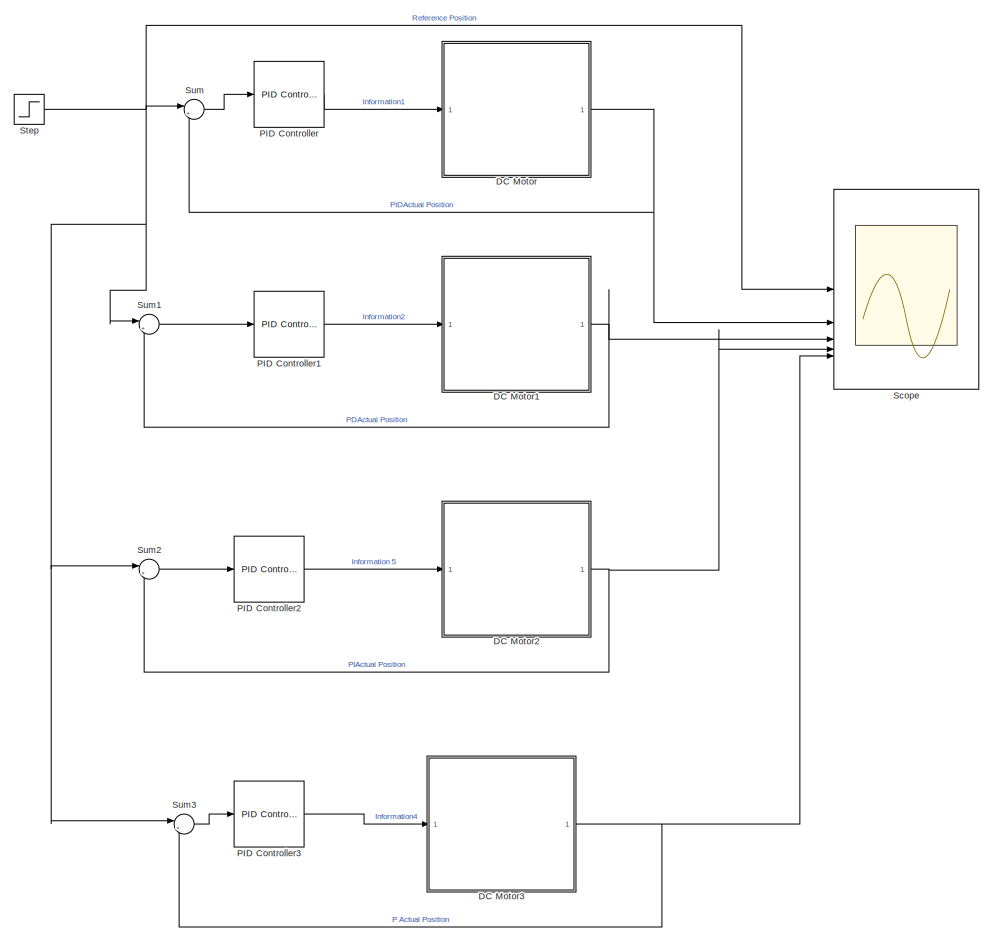
[diagram: root canvas - part 1/2, center side, full height]
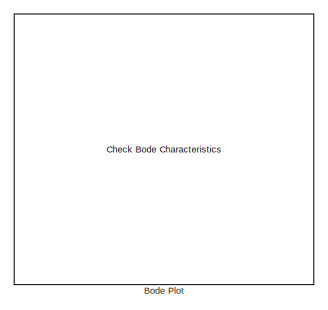
[diagram: root canvas - part 2/2, top left region]
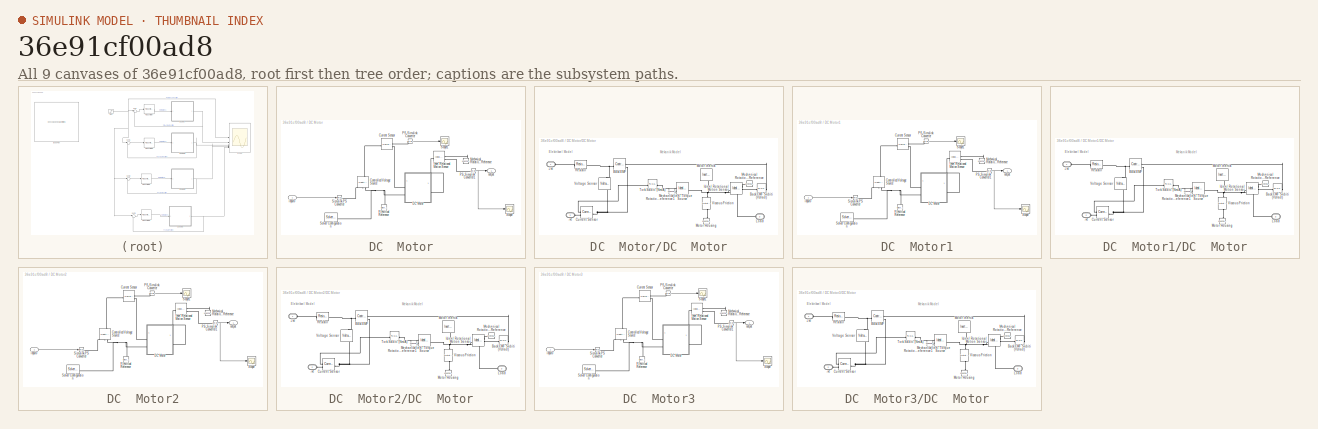
[diagram: thumbnail index - all 9 canvases of the model, root first then tree order]
MODEL slx_36e91cf00ad8
KIND model
CONFIG AbsTol = auto
CONFIG EnableMultiTasking = on
CONFIG FixedStep = 0.001
CONFIG MaxStep = auto
CONFIG MinStep = auto
CONFIG RelTol = 1e-4
CONFIG SampleTimeConstraint = Unconstrained
CONFIG SolverName = ode23t
CONFIG StartTime = 0.0
CONFIG StopTime = 7
WORKSPACE source: mxarray member
WORKSPACE B = 0.008
WORKSPACE J = 5.7e-07
WORKSPACE Jd = 0.001
WORKSPACE Km = 0.0134
WORKSPACE La = 6.5e-05
WORKSPACE Ra = 1.9
WORKSPACE spe_servomotor_sdosession: sldodialogs.data.SessionData (value not decoded)
WORKSPACE x0 = 2.6485
BLOCK [Reference] Bode Plot  REF=slctrlblks/Model Verification/Check Bode 
Characteristics
  InstantiateOnLoad = on
  LibrarySourceBlock = slctrlblks/Linear Analysis Plots/Bode Plot
  SourceBlock = slctrlblks/Model Verification/Check Bode \nCharacteristics
  SourceType = Checks_Bode
BLOCK [SubSystem] DC  Motor
BLOCK [Reference] DC  Motor/Controlled Voltage Source  REF=fl_lib/Electrical/Electrical Sources/Controlled Voltage
Source
  NameLocation = right
  SourceBlock = fl_lib/Electrical/Electrical Sources/Controlled Voltage\nSource
  SourceType = Controlled Voltage\nSource
BLOCK [Reference] DC  Motor/Current Sensor  REF=fl_lib/Electrical/Electrical Sensors/Current Sensor
  SourceBlock = fl_lib/Electrical/Electrical Sensors/Current Sensor
  SourceType = Current Sensor
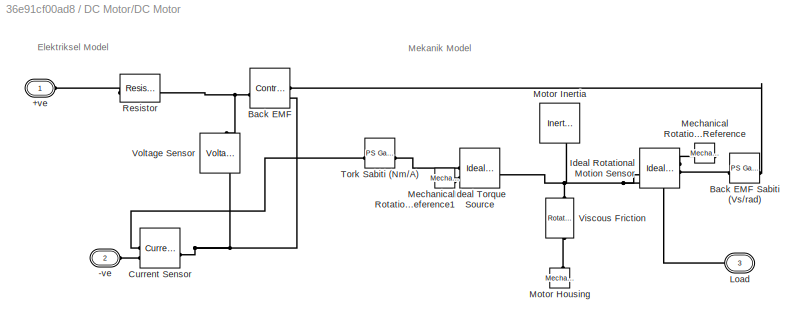
BLOCK [SubSystem] DC  Motor/DC  Motor
BLOCK [PMIOPort] DC  Motor/DC  Motor/+ve
  Side = Left
  Tag = PMCPort
BLOCK [PMIOPort] DC  Motor/DC  Motor/-ve
  Port = 2
  Side = Left
  Tag = PMCPort
BLOCK [Reference] DC  Motor/DC  Motor/Back EMF  REF=fl_lib/Electrical/Electrical Sources/Controlled Voltage
Source
  NameLocation = top
  SourceBlock = fl_lib/Electrical/Electrical Sources/Controlled Voltage\nSource
  SourceType = Controlled Voltage\nSource
BLOCK [Reference] DC  Motor/DC  Motor/Back EMF Sabiti (Vs//rad)  REF=fl_ps_legacy_lib/Legacy Physical
Signals/Functions/PS Gain
  SourceBlock = fl_ps_legacy_lib/Legacy Physical\nSignals/Functions/PS Gain
  SourceType = PS Gain
BLOCK [Reference] DC  Motor/DC  Motor/Current Sensor  REF=fl_lib/Electrical/Electrical Sensors/Current Sensor
  SourceBlock = fl_lib/Electrical/Electrical Sensors/Current Sensor
  SourceType = Current Sensor
BLOCK [Reference] DC  Motor/DC  Motor/Ideal Rotational Motion Sensor  REF=fl_lib/Mechanical/Mechanical Sensors/Ideal Rotational
Motion Sensor
  SourceBlock = fl_lib/Mechanical/Mechanical Sensors/Ideal Rotational\nMotion Sensor
  SourceType = Ideal Rotational\nMotion Sensor
BLOCK [Reference] DC  Motor/DC  Motor/Ideal Torque Source  REF=fl_lib/Mechanical/Mechanical Sources/Ideal Torque Source
  SourceBlock = fl_lib/Mechanical/Mechanical Sources/Ideal Torque Source
  SourceType = Ideal Torque Source
BLOCK [PMIOPort] DC  Motor/DC  Motor/Load
  Port = 3
  Side = Right
BLOCK [Reference] DC  Motor/DC  Motor/Mechanical Rotational Reference  REF=fl_lib/Mechanical/Rotational Elements/Mechanical
Rotational Reference
  NameLocation = top
  SourceBlock = fl_lib/Mechanical/Rotational Elements/Mechanical\nRotational Reference
  SourceType = Mechanical\nRotational Reference
BLOCK [Reference] DC  Motor/DC  Motor/Mechanical Rotational Reference1  REF=fl_lib/Mechanical/Rotational Elements/Mechanical
Rotational Reference
  SourceBlock = fl_lib/Mechanical/Rotational Elements/Mechanical\nRotational Reference
  SourceType = Mechanical\nRotational Reference
BLOCK [Reference] DC  Motor/DC  Motor/Motor Housing  REF=fl_lib/Mechanical/Rotational Elements/Mechanical
Rotational Reference
  NameLocation = right
  SourceBlock = fl_lib/Mechanical/Rotational Elements/Mechanical\nRotational Reference
  SourceType = Mechanical\nRotational Reference
BLOCK [Reference] DC  Motor/DC  Motor/Motor Inertia  REF=fl_lib/Mechanical/Rotational Elements/Inertia
  NameLocation = left
  SourceBlock = fl_lib/Mechanical/Rotational Elements/Inertia
  SourceType = Inertia
BLOCK [Reference] DC  Motor/DC  Motor/Resistor  REF=fl_lib/Electrical/Electrical Elements/Resistor
  SourceBlock = fl_lib/Electrical/Electrical Elements/Resistor
  SourceType = Resistor
BLOCK [Reference] DC  Motor/DC  Motor/Tork Sabiti (Nm//A)  REF=fl_ps_legacy_lib/Legacy Physical
Signals/Functions/PS Gain
  SourceBlock = fl_ps_legacy_lib/Legacy Physical\nSignals/Functions/PS Gain
  SourceType = PS Gain
BLOCK [Reference] DC  Motor/DC  Motor/Viscous Friction  REF=fl_lib/Mechanical/Rotational Elements/Rotational Damper
  NameLocation = right
  SourceBlock = fl_lib/Mechanical/Rotational Elements/Rotational Damper
  SourceType = Rotational Damper
BLOCK [Reference] DC  Motor/DC  Motor/Voltage Sensor  REF=fl_lib/Electrical/Electrical Sensors/Voltage Sensor
  NameLocation = right
  SourceBlock = fl_lib/Electrical/Electrical Sensors/Voltage Sensor
  SourceType = Voltage Sensor
BLOCK [Reference] DC  Motor/Electrical Reference  REF=fl_lib/Electrical/Electrical Elements/Electrical Reference
  NameLocation = right
  SourceBlock = fl_lib/Electrical/Electrical Elements/Electrical Reference
  SourceType = Electrical Reference
BLOCK [Reference] DC  Motor/Ideal Rotational Motion Sensor  REF=fl_lib/Mechanical/Mechanical Sensors/Ideal Rotational
Motion Sensor
  SourceBlock = fl_lib/Mechanical/Mechanical Sensors/Ideal Rotational\nMotion Sensor
  SourceType = Ideal Rotational\nMotion Sensor
BLOCK [Reference] DC  Motor/Mechanical Rotational Reference  REF=fl_lib/Mechanical/Rotational Elements/Mechanical
Rotational Reference
  NameLocation = top
  SourceBlock = fl_lib/Mechanical/Rotational Elements/Mechanical\nRotational Reference
  SourceType = Mechanical\nRotational Reference
BLOCK [Reference] DC  Motor/PS-Simulink Converter  REF=nesl_utility/PS-Simulink
Converter
  SourceBlock = nesl_utility/PS-Simulink\nConverter
  SourceType = PS-Simulink\nConverter
BLOCK [Reference] DC  Motor/PS-Simulink Converter1  REF=nesl_utility/PS-Simulink
Converter
  SourceBlock = nesl_utility/PS-Simulink\nConverter
  SourceType = PS-Simulink\nConverter
BLOCK [Scope] DC  Motor/Scope
  Floating = off
  NumInputPorts = 1
  ScopeSpecificationString = Simulink.scopes.TimeScopeBlockCfg('CurrentConfiguration', extmgr.ConfigurationSet(extmgr.Configuration('Core','General UI',true),extmgr.Configuration('Core','Source UI',true),extmgr.Configuration('Sources','WiredSimulink',true,'DataLoggingVariableName','ScopeData1'),extmgr.Configuration('Visuals','Time Domain',true,'SerializedDisplays',{struct('MinYLimReal','-0.000000000000000000000000000005','Max...<+1630ch>
BLOCK [Scope] DC  Motor/Scope1
  Floating = off
  NumInputPorts = 1
  ScopeSpecificationString = Simulink.scopes.TimeScopeBlockCfg('CurrentConfiguration', extmgr.ConfigurationSet(extmgr.Configuration('Core','General UI',true),extmgr.Configuration('Core','Source UI',true),extmgr.Configuration('Sources','WiredSimulink',true,'DataLoggingVariableName','ScopeData1'),extmgr.Configuration('Visuals','Time Domain',true,'SerializedDisplays',{struct('MinYLimReal','-0.00754','MaxYLimReal','0.05533','YLab...<+1409ch>
BLOCK [Reference] DC  Motor/Simulink-PS Converter  REF=nesl_utility/Simulink-PS
Converter
  SourceBlock = nesl_utility/Simulink-PS\nConverter
  SourceType = Simulink-PS\nConverter
BLOCK [Reference] DC  Motor/Solver Configuration  REF=nesl_utility/Solver
Configuration
  SourceBlock = nesl_utility/Solver\nConfiguration
  SourceType = Solver\nConfiguration
BLOCK [Inport] DC  Motor/input0
BLOCK [Outport] DC  Motor/output
BLOCK [SubSystem] DC  Motor1
BLOCK [Reference] DC  Motor1/Controlled Voltage Source  REF=fl_lib/Electrical/Electrical Sources/Controlled Voltage
Source
  NameLocation = right
  SourceBlock = fl_lib/Electrical/Electrical Sources/Controlled Voltage\nSource
  SourceType = Controlled Voltage\nSource
BLOCK [Reference] DC  Motor1/Current Sensor  REF=fl_lib/Electrical/Electrical Sensors/Current Sensor
  SourceBlock = fl_lib/Electrical/Electrical Sensors/Current Sensor
  SourceType = Current Sensor
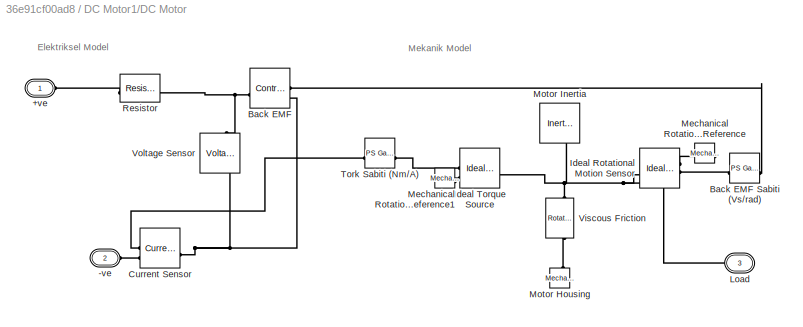
BLOCK [SubSystem] DC  Motor1/DC  Motor
BLOCK [PMIOPort] DC  Motor1/DC  Motor/+ve
  Side = Left
  Tag = PMCPort
BLOCK [PMIOPort] DC  Motor1/DC  Motor/-ve
  Port = 2
  Side = Left
  Tag = PMCPort
BLOCK [Reference] DC  Motor1/DC  Motor/Back EMF  REF=fl_lib/Electrical/Electrical Sources/Controlled Voltage
Source
  NameLocation = top
  SourceBlock = fl_lib/Electrical/Electrical Sources/Controlled Voltage\nSource
  SourceType = Controlled Voltage\nSource
BLOCK [Reference] DC  Motor1/DC  Motor/Back EMF Sabiti (Vs//rad)  REF=fl_ps_legacy_lib/Legacy Physical
Signals/Functions/PS Gain
  SourceBlock = fl_ps_legacy_lib/Legacy Physical\nSignals/Functions/PS Gain
  SourceType = PS Gain
BLOCK [Reference] DC  Motor1/DC  Motor/Current Sensor  REF=fl_lib/Electrical/Electrical Sensors/Current Sensor
  SourceBlock = fl_lib/Electrical/Electrical Sensors/Current Sensor
  SourceType = Current Sensor
BLOCK [Reference] DC  Motor1/DC  Motor/Ideal Rotational Motion Sensor  REF=fl_lib/Mechanical/Mechanical Sensors/Ideal Rotational
Motion Sensor
  SourceBlock = fl_lib/Mechanical/Mechanical Sensors/Ideal Rotational\nMotion Sensor
  SourceType = Ideal Rotational\nMotion Sensor
BLOCK [Reference] DC  Motor1/DC  Motor/Ideal Torque Source  REF=fl_lib/Mechanical/Mechanical Sources/Ideal Torque Source
  SourceBlock = fl_lib/Mechanical/Mechanical Sources/Ideal Torque Source
  SourceType = Ideal Torque Source
BLOCK [PMIOPort] DC  Motor1/DC  Motor/Load
  Port = 3
  Side = Right
BLOCK [Reference] DC  Motor1/DC  Motor/Mechanical Rotational Reference  REF=fl_lib/Mechanical/Rotational Elements/Mechanical
Rotational Reference
  NameLocation = top
  SourceBlock = fl_lib/Mechanical/Rotational Elements/Mechanical\nRotational Reference
  SourceType = Mechanical\nRotational Reference
BLOCK [Reference] DC  Motor1/DC  Motor/Mechanical Rotational Reference1  REF=fl_lib/Mechanical/Rotational Elements/Mechanical
Rotational Reference
  SourceBlock = fl_lib/Mechanical/Rotational Elements/Mechanical\nRotational Reference
  SourceType = Mechanical\nRotational Reference
BLOCK [Reference] DC  Motor1/DC  Motor/Motor Housing  REF=fl_lib/Mechanical/Rotational Elements/Mechanical
Rotational Reference
  NameLocation = right
  SourceBlock = fl_lib/Mechanical/Rotational Elements/Mechanical\nRotational Reference
  SourceType = Mechanical\nRotational Reference
BLOCK [Reference] DC  Motor1/DC  Motor/Motor Inertia  REF=fl_lib/Mechanical/Rotational Elements/Inertia
  NameLocation = left
  SourceBlock = fl_lib/Mechanical/Rotational Elements/Inertia
  SourceType = Inertia
BLOCK [Reference] DC  Motor1/DC  Motor/Resistor  REF=fl_lib/Electrical/Electrical Elements/Resistor
  SourceBlock = fl_lib/Electrical/Electrical Elements/Resistor
  SourceType = Resistor
BLOCK [Reference] DC  Motor1/DC  Motor/Tork Sabiti (Nm//A)  REF=fl_ps_legacy_lib/Legacy Physical
Signals/Functions/PS Gain
  SourceBlock = fl_ps_legacy_lib/Legacy Physical\nSignals/Functions/PS Gain
  SourceType = PS Gain
BLOCK [Reference] DC  Motor1/DC  Motor/Viscous Friction  REF=fl_lib/Mechanical/Rotational Elements/Rotational Damper
  NameLocation = right
  SourceBlock = fl_lib/Mechanical/Rotational Elements/Rotational Damper
  SourceType = Rotational Damper
BLOCK [Reference] DC  Motor1/DC  Motor/Voltage Sensor  REF=fl_lib/Electrical/Electrical Sensors/Voltage Sensor
  NameLocation = right
  SourceBlock = fl_lib/Electrical/Electrical Sensors/Voltage Sensor
  SourceType = Voltage Sensor
BLOCK [Reference] DC  Motor1/Electrical Reference  REF=fl_lib/Electrical/Electrical Elements/Electrical Reference
  NameLocation = right
  SourceBlock = fl_lib/Electrical/Electrical Elements/Electrical Reference
  SourceType = Electrical Reference
BLOCK [Reference] DC  Motor1/Ideal Rotational Motion Sensor  REF=fl_lib/Mechanical/Mechanical Sensors/Ideal Rotational
Motion Sensor
  SourceBlock = fl_lib/Mechanical/Mechanical Sensors/Ideal Rotational\nMotion Sensor
  SourceType = Ideal Rotational\nMotion Sensor
BLOCK [Reference] DC  Motor1/Mechanical Rotational Reference  REF=fl_lib/Mechanical/Rotational Elements/Mechanical
Rotational Reference
  NameLocation = top
  SourceBlock = fl_lib/Mechanical/Rotational Elements/Mechanical\nRotational Reference
  SourceType = Mechanical\nRotational Reference
BLOCK [Reference] DC  Motor1/PS-Simulink Converter  REF=nesl_utility/PS-Simulink
Converter
  SourceBlock = nesl_utility/PS-Simulink\nConverter
  SourceType = PS-Simulink\nConverter
BLOCK [Reference] DC  Motor1/PS-Simulink Converter1  REF=nesl_utility/PS-Simulink
Converter
  SourceBlock = nesl_utility/PS-Simulink\nConverter
  SourceType = PS-Simulink\nConverter
BLOCK [Scope] DC  Motor1/Scope
  Floating = off
  NumInputPorts = 1
  ScopeSpecificationString = Simulink.scopes.TimeScopeBlockCfg('CurrentConfiguration', extmgr.ConfigurationSet(extmgr.Configuration('Core','General UI',true),extmgr.Configuration('Core','Source UI',true),extmgr.Configuration('Sources','WiredSimulink',true,'DataLoggingVariableName','ScopeData1'),extmgr.Configuration('Visuals','Time Domain',true,'SerializedDisplays',{struct('MinYLimReal','-0.000000000000000000000000000005','Max...<+1600ch>  <repeated x3 — deduplicated; at blocks: Scope>
BLOCK [Scope] DC  Motor1/Scope1
  Floating = off
  NumInputPorts = 1
  ScopeSpecificationString = Simulink.scopes.TimeScopeBlockCfg('CurrentConfiguration', extmgr.ConfigurationSet(extmgr.Configuration('Core','General UI',true),extmgr.Configuration('Core','Source UI',true),extmgr.Configuration('Sources','WiredSimulink',true,'DataLoggingVariableName','ScopeData1'),extmgr.Configuration('Visuals','Time Domain',true,'SerializedDisplays',{struct('MinYLimReal','-0.06579','MaxYLimReal','0.59208','YLab...<+1380ch>  <repeated x3 — deduplicated; at blocks: Scope1>
BLOCK [Reference] DC  Motor1/Simulink-PS Converter  REF=nesl_utility/Simulink-PS
Converter
  SourceBlock = nesl_utility/Simulink-PS\nConverter
  SourceType = Simulink-PS\nConverter
BLOCK [Reference] DC  Motor1/Solver Configuration  REF=nesl_utility/Solver
Configuration
  SourceBlock = nesl_utility/Solver\nConfiguration
  SourceType = Solver\nConfiguration
BLOCK [Inport] DC  Motor1/input0
BLOCK [Outport] DC  Motor1/output
BLOCK [SubSystem] DC  Motor2
BLOCK [Reference] DC  Motor2/Controlled Voltage Source  REF=fl_lib/Electrical/Electrical Sources/Controlled Voltage
Source
  NameLocation = right
  SourceBlock = fl_lib/Electrical/Electrical Sources/Controlled Voltage\nSource
  SourceType = Controlled Voltage\nSource
BLOCK [Reference] DC  Motor2/Current Sensor  REF=fl_lib/Electrical/Electrical Sensors/Current Sensor
  SourceBlock = fl_lib/Electrical/Electrical Sensors/Current Sensor
  SourceType = Current Sensor
BLOCK [SubSystem] DC  Motor2/DC  Motor
BLOCK [PMIOPort] DC  Motor2/DC  Motor/+ve
  Side = Left
  Tag = PMCPort
BLOCK [PMIOPort] DC  Motor2/DC  Motor/-ve
  Port = 2
  Side = Left
  Tag = PMCPort
BLOCK [Reference] DC  Motor2/DC  Motor/Back EMF  REF=fl_lib/Electrical/Electrical Sources/Controlled Voltage
Source
  NameLocation = top
  SourceBlock = fl_lib/Electrical/Electrical Sources/Controlled Voltage\nSource
  SourceType = Controlled Voltage\nSource
BLOCK [Reference] DC  Motor2/DC  Motor/Back EMF Sabiti (Vs//rad)  REF=fl_ps_legacy_lib/Legacy Physical
Signals/Functions/PS Gain
  SourceBlock = fl_ps_legacy_lib/Legacy Physical\nSignals/Functions/PS Gain
  SourceType = PS Gain
BLOCK [Reference] DC  Motor2/DC  Motor/Current Sensor  REF=fl_lib/Electrical/Electrical Sensors/Current Sensor
  SourceBlock = fl_lib/Electrical/Electrical Sensors/Current Sensor
  SourceType = Current Sensor
BLOCK [Reference] DC  Motor2/DC  Motor/Ideal Rotational Motion Sensor  REF=fl_lib/Mechanical/Mechanical Sensors/Ideal Rotational
Motion Sensor
  SourceBlock = fl_lib/Mechanical/Mechanical Sensors/Ideal Rotational\nMotion Sensor
  SourceType = Ideal Rotational\nMotion Sensor
BLOCK [Reference] DC  Motor2/DC  Motor/Ideal Torque Source  REF=fl_lib/Mechanical/Mechanical Sources/Ideal Torque Source
  SourceBlock = fl_lib/Mechanical/Mechanical Sources/Ideal Torque Source
  SourceType = Ideal Torque Source
BLOCK [PMIOPort] DC  Motor2/DC  Motor/Load
  Port = 3
  Side = Right
BLOCK [Reference] DC  Motor2/DC  Motor/Mechanical Rotational Reference  REF=fl_lib/Mechanical/Rotational Elements/Mechanical
Rotational Reference
  NameLocation = top
  SourceBlock = fl_lib/Mechanical/Rotational Elements/Mechanical\nRotational Reference
  SourceType = Mechanical\nRotational Reference
BLOCK [Reference] DC  Motor2/DC  Motor/Mechanical Rotational Reference1  REF=fl_lib/Mechanical/Rotational Elements/Mechanical
Rotational Reference
  SourceBlock = fl_lib/Mechanical/Rotational Elements/Mechanical\nRotational Reference
  SourceType = Mechanical\nRotational Reference
BLOCK [Reference] DC  Motor2/DC  Motor/Motor Housing  REF=fl_lib/Mechanical/Rotational Elements/Mechanical
Rotational Reference
  NameLocation = right
  SourceBlock = fl_lib/Mechanical/Rotational Elements/Mechanical\nRotational Reference
  SourceType = Mechanical\nRotational Reference
BLOCK [Reference] DC  Motor2/DC  Motor/Motor Inertia  REF=fl_lib/Mechanical/Rotational Elements/Inertia
  NameLocation = left
  SourceBlock = fl_lib/Mechanical/Rotational Elements/Inertia
  SourceType = Inertia
BLOCK [Reference] DC  Motor2/DC  Motor/Resistor  REF=fl_lib/Electrical/Electrical Elements/Resistor
  SourceBlock = fl_lib/Electrical/Electrical Elements/Resistor
  SourceType = Resistor
BLOCK [Reference] DC  Motor2/DC  Motor/Tork Sabiti (Nm//A)  REF=fl_ps_legacy_lib/Legacy Physical
Signals/Functions/PS Gain
  SourceBlock = fl_ps_legacy_lib/Legacy Physical\nSignals/Functions/PS Gain
  SourceType = PS Gain
BLOCK [Reference] DC  Motor2/DC  Motor/Viscous Friction  REF=fl_lib/Mechanical/Rotational Elements/Rotational Damper
  NameLocation = right
  SourceBlock = fl_lib/Mechanical/Rotational Elements/Rotational Damper
  SourceType = Rotational Damper
BLOCK [Reference] DC  Motor2/DC  Motor/Voltage Sensor  REF=fl_lib/Electrical/Electrical Sensors/Voltage Sensor
  NameLocation = right
  SourceBlock = fl_lib/Electrical/Electrical Sensors/Voltage Sensor
  SourceType = Voltage Sensor
BLOCK [Reference] DC  Motor2/Electrical Reference  REF=fl_lib/Electrical/Electrical Elements/Electrical Reference
  NameLocation = right
  SourceBlock = fl_lib/Electrical/Electrical Elements/Electrical Reference
  SourceType = Electrical Reference
BLOCK [Reference] DC  Motor2/Ideal Rotational Motion Sensor  REF=fl_lib/Mechanical/Mechanical Sensors/Ideal Rotational
Motion Sensor
  SourceBlock = fl_lib/Mechanical/Mechanical Sensors/Ideal Rotational\nMotion Sensor
  SourceType = Ideal Rotational\nMotion Sensor
BLOCK [Reference] DC  Motor2/Mechanical Rotational Reference  REF=fl_lib/Mechanical/Rotational Elements/Mechanical
Rotational Reference
  NameLocation = top
  SourceBlock = fl_lib/Mechanical/Rotational Elements/Mechanical\nRotational Reference
  SourceType = Mechanical\nRotational Reference
BLOCK [Reference] DC  Motor2/PS-Simulink Converter  REF=nesl_utility/PS-Simulink
Converter
  SourceBlock = nesl_utility/PS-Simulink\nConverter
  SourceType = PS-Simulink\nConverter
BLOCK [Reference] DC  Motor2/PS-Simulink Converter1  REF=nesl_utility/PS-Simulink
Converter
  SourceBlock = nesl_utility/PS-Simulink\nConverter
  SourceType = PS-Simulink\nConverter
BLOCK [Scope] DC  Motor2/Scope
  Floating = off
  NumInputPorts = 1
BLOCK [Scope] DC  Motor2/Scope1
  Floating = off
  NumInputPorts = 1
BLOCK [Reference] DC  Motor2/Simulink-PS Converter  REF=nesl_utility/Simulink-PS
Converter
  SourceBlock = nesl_utility/Simulink-PS\nConverter
  SourceType = Simulink-PS\nConverter
BLOCK [Reference] DC  Motor2/Solver Configuration  REF=nesl_utility/Solver
Configuration
  SourceBlock = nesl_utility/Solver\nConfiguration
  SourceType = Solver\nConfiguration
BLOCK [Inport] DC  Motor2/input0
BLOCK [Outport] DC  Motor2/output
BLOCK [SubSystem] DC  Motor3
BLOCK [Reference] DC  Motor3/Controlled Voltage Source  REF=fl_lib/Electrical/Electrical Sources/Controlled Voltage
Source
  NameLocation = right
  SourceBlock = fl_lib/Electrical/Electrical Sources/Controlled Voltage\nSource
  SourceType = Controlled Voltage\nSource
BLOCK [Reference] DC  Motor3/Current Sensor  REF=fl_lib/Electrical/Electrical Sensors/Current Sensor
  SourceBlock = fl_lib/Electrical/Electrical Sensors/Current Sensor
  SourceType = Current Sensor
BLOCK [SubSystem] DC  Motor3/DC  Motor
BLOCK [PMIOPort] DC  Motor3/DC  Motor/+ve
  Side = Left
  Tag = PMCPort
BLOCK [PMIOPort] DC  Motor3/DC  Motor/-ve
  Port = 2
  Side = Left
  Tag = PMCPort
BLOCK [Reference] DC  Motor3/DC  Motor/Back EMF  REF=fl_lib/Electrical/Electrical Sources/Controlled Voltage
Source
  NameLocation = top
  SourceBlock = fl_lib/Electrical/Electrical Sources/Controlled Voltage\nSource
  SourceType = Controlled Voltage\nSource
BLOCK [Reference] DC  Motor3/DC  Motor/Back EMF Sabiti (Vs//rad)  REF=fl_ps_legacy_lib/Legacy Physical
Signals/Functions/PS Gain
  SourceBlock = fl_ps_legacy_lib/Legacy Physical\nSignals/Functions/PS Gain
  SourceType = PS Gain
BLOCK [Reference] DC  Motor3/DC  Motor/Current Sensor  REF=fl_lib/Electrical/Electrical Sensors/Current Sensor
  SourceBlock = fl_lib/Electrical/Electrical Sensors/Current Sensor
  SourceType = Current Sensor
BLOCK [Reference] DC  Motor3/DC  Motor/Ideal Rotational Motion Sensor  REF=fl_lib/Mechanical/Mechanical Sensors/Ideal Rotational
Motion Sensor
  SourceBlock = fl_lib/Mechanical/Mechanical Sensors/Ideal Rotational\nMotion Sensor
  SourceType = Ideal Rotational\nMotion Sensor
BLOCK [Reference] DC  Motor3/DC  Motor/Ideal Torque Source  REF=fl_lib/Mechanical/Mechanical Sources/Ideal Torque Source
  SourceBlock = fl_lib/Mechanical/Mechanical Sources/Ideal Torque Source
  SourceType = Ideal Torque Source
BLOCK [PMIOPort] DC  Motor3/DC  Motor/Load
  Port = 3
  Side = Right
BLOCK [Reference] DC  Motor3/DC  Motor/Mechanical Rotational Reference  REF=fl_lib/Mechanical/Rotational Elements/Mechanical
Rotational Reference
  NameLocation = top
  SourceBlock = fl_lib/Mechanical/Rotational Elements/Mechanical\nRotational Reference
  SourceType = Mechanical\nRotational Reference
BLOCK [Reference] DC  Motor3/DC  Motor/Mechanical Rotational Reference1  REF=fl_lib/Mechanical/Rotational Elements/Mechanical
Rotational Reference
  SourceBlock = fl_lib/Mechanical/Rotational Elements/Mechanical\nRotational Reference
  SourceType = Mechanical\nRotational Reference
BLOCK [Reference] DC  Motor3/DC  Motor/Motor Housing  REF=fl_lib/Mechanical/Rotational Elements/Mechanical
Rotational Reference
  NameLocation = right
  SourceBlock = fl_lib/Mechanical/Rotational Elements/Mechanical\nRotational Reference
  SourceType = Mechanical\nRotational Reference
BLOCK [Reference] DC  Motor3/DC  Motor/Motor Inertia  REF=fl_lib/Mechanical/Rotational Elements/Inertia
  NameLocation = left
  SourceBlock = fl_lib/Mechanical/Rotational Elements/Inertia
  SourceType = Inertia
BLOCK [Reference] DC  Motor3/DC  Motor/Resistor  REF=fl_lib/Electrical/Electrical Elements/Resistor
  SourceBlock = fl_lib/Electrical/Electrical Elements/Resistor
  SourceType = Resistor
BLOCK [Reference] DC  Motor3/DC  Motor/Tork Sabiti (Nm//A)  REF=fl_ps_legacy_lib/Legacy Physical
Signals/Functions/PS Gain
  SourceBlock = fl_ps_legacy_lib/Legacy Physical\nSignals/Functions/PS Gain
  SourceType = PS Gain
BLOCK [Reference] DC  Motor3/DC  Motor/Viscous Friction  REF=fl_lib/Mechanical/Rotational Elements/Rotational Damper
  NameLocation = right
  SourceBlock = fl_lib/Mechanical/Rotational Elements/Rotational Damper
  SourceType = Rotational Damper
BLOCK [Reference] DC  Motor3/DC  Motor/Voltage Sensor  REF=fl_lib/Electrical/Electrical Sensors/Voltage Sensor
  NameLocation = right
  SourceBlock = fl_lib/Electrical/Electrical Sensors/Voltage Sensor
  SourceType = Voltage Sensor
BLOCK [Reference] DC  Motor3/Electrical Reference  REF=fl_lib/Electrical/Electrical Elements/Electrical Reference
  NameLocation = right
  SourceBlock = fl_lib/Electrical/Electrical Elements/Electrical Reference
  SourceType = Electrical Reference
BLOCK [Reference] DC  Motor3/Ideal Rotational Motion Sensor  REF=fl_lib/Mechanical/Mechanical Sensors/Ideal Rotational
Motion Sensor
  SourceBlock = fl_lib/Mechanical/Mechanical Sensors/Ideal Rotational\nMotion Sensor
  SourceType = Ideal Rotational\nMotion Sensor
BLOCK [Reference] DC  Motor3/Mechanical Rotational Reference  REF=fl_lib/Mechanical/Rotational Elements/Mechanical
Rotational Reference
  NameLocation = top
  SourceBlock = fl_lib/Mechanical/Rotational Elements/Mechanical\nRotational Reference
  SourceType = Mechanical\nRotational Reference
BLOCK [Reference] DC  Motor3/PS-Simulink Converter  REF=nesl_utility/PS-Simulink
Converter
  SourceBlock = nesl_utility/PS-Simulink\nConverter
  SourceType = PS-Simulink\nConverter
BLOCK [Reference] DC  Motor3/PS-Simulink Converter1  REF=nesl_utility/PS-Simulink
Converter
  SourceBlock = nesl_utility/PS-Simulink\nConverter
  SourceType = PS-Simulink\nConverter
BLOCK [Scope] DC  Motor3/Scope
  Floating = off
  NumInputPorts = 1
BLOCK [Scope] DC  Motor3/Scope1
  Floating = off
  NumInputPorts = 1
BLOCK [Reference] DC  Motor3/Simulink-PS Converter  REF=nesl_utility/Simulink-PS
Converter
  SourceBlock = nesl_utility/Simulink-PS\nConverter
  SourceType = Simulink-PS\nConverter
BLOCK [Reference] DC  Motor3/Solver Configuration  REF=nesl_utility/Solver
Configuration
  SourceBlock = nesl_utility/Solver\nConfiguration
  SourceType = Solver\nConfiguration
BLOCK [Inport] DC  Motor3/input0
BLOCK [Outport] DC  Motor3/output
BLOCK [Reference] PID Controller  REF=slpidlib/PID Controller
  LibrarySourceBlock = simulink/Continuous/PID Controller
  SourceBlock = slpidlib/PID Controller
  SourceType = PID 1dof
BLOCK [Reference] PID Controller1  REF=slpidlib/PID Controller
  LibrarySourceBlock = simulink/Continuous/PID Controller
  SourceBlock = slpidlib/PID Controller
  SourceType = PID 1dof
BLOCK [Reference] PID Controller2  REF=slpidlib/PID Controller
  LibrarySourceBlock = simulink/Continuous/PID Controller
  SourceBlock = slpidlib/PID Controller
  SourceType = PID 1dof
BLOCK [Reference] PID Controller3  REF=slpidlib/PID Controller
  LibrarySourceBlock = simulink/Continuous/PID Controller
  SourceBlock = slpidlib/PID Controller
  SourceType = PID 1dof
BLOCK [Scope] Scope
  Floating = off
  NumInputPorts = 5
  ScopeSpecificationString = Simulink.scopes.TimeScopeBlockCfg('CurrentConfiguration', extmgr.ConfigurationSet(extmgr.Configuration('Core','General UI',true),extmgr.Configuration('Core','Source UI',true),extmgr.Configuration('Sources','WiredSimulink',true,'DataLoggingVariableName','ScopeData1','DataLoggingSaveFormat','StructureWithTime','DataLoggingLimitDataPoints',true,'DataLoggingDecimation','1','DataLoggingDecimateData',tr...<+1968ch>
BLOCK [Step] Step
  SampleTime = 0
BLOCK [Sum] Sum
  Inputs = |+-
BLOCK [Sum] Sum1
  Inputs = |+-
BLOCK [Sum] Sum2
  Inputs = |+-
BLOCK [Sum] Sum3
  Inputs = |+-
ANNOTATION DC  Motor/DC  Motor: Elektriksel Model
ANNOTATION DC  Motor/DC  Motor: Mekanik Model
ANNOTATION DC  Motor1/DC  Motor: Elektriksel Model
ANNOTATION DC  Motor1/DC  Motor: Mekanik Model
ANNOTATION DC  Motor2/DC  Motor: Elektriksel Model
ANNOTATION DC  Motor2/DC  Motor: Mekanik Model
ANNOTATION DC  Motor3/DC  Motor: Elektriksel Model
ANNOTATION DC  Motor3/DC  Motor: Mekanik Model
NET DC  Motor/PS-Simulink Converter1:1 -> DC  Motor/Scope:1, DC  Motor/output:1
LINE DC  Motor/PS-Simulink Converter:1 -> DC  Motor/Scope1:1
LINE DC  Motor/input0:1 -> DC  Motor/Simulink-PS Converter:1
NET DC  Motor1/PS-Simulink Converter1:1 -> DC  Motor1/Scope:1, DC  Motor1/output:1
LINE DC  Motor1/PS-Simulink Converter:1 -> DC  Motor1/Scope1:1
LINE DC  Motor1/input0:1 -> DC  Motor1/Simulink-PS Converter:1
NET DC  Motor1:1 -> Scope:3, Sum1:2
NET DC  Motor2/PS-Simulink Converter1:1 -> DC  Motor2/Scope:1, DC  Motor2/output:1
LINE DC  Motor2/PS-Simulink Converter:1 -> DC  Motor2/Scope1:1
LINE DC  Motor2/input0:1 -> DC  Motor2/Simulink-PS Converter:1
NET DC  Motor2:1 -> Scope:4, Sum2:2
NET DC  Motor3/PS-Simulink Converter1:1 -> DC  Motor3/Scope:1, DC  Motor3/output:1
LINE DC  Motor3/PS-Simulink Converter:1 -> DC  Motor3/Scope1:1
LINE DC  Motor3/input0:1 -> DC  Motor3/Simulink-PS Converter:1
NET DC  Motor3:1 -> Scope:5, Sum3:2
NET DC  Motor:1 -> Scope:2, Sum:2
LINE PID Controller1:1 -> DC  Motor1:1
LINE PID Controller2:1 -> DC  Motor2:1
LINE PID Controller3:1 -> DC  Motor3:1
LINE PID Controller:1 -> DC  Motor:1
NET Step:1 -> Scope:1, Sum1:1, Sum2:1, Sum3:1, Sum:1
LINE Sum1:1 -> PID Controller1:1
LINE Sum2:1 -> PID Controller2:1
LINE Sum3:1 -> PID Controller3:1
LINE Sum:1 -> PID Controller:1
PLINE DC  Motor/Controlled Voltage Source:LConn1 -- DC  Motor/Current Sensor:LConn1
PLINE DC  Motor/Controlled Voltage Source:RConn1 -- DC  Motor/Simulink-PS Converter:RConn1
PNET net1: DC  Motor/Controlled Voltage Source:RConn2 -- DC  Motor/DC  Motor:LConn2 -- DC  Motor/Electrical Reference:LConn1 -- DC  Motor/Solver Configuration:RConn1
PLINE DC  Motor/Current Sensor:RConn1 -- DC  Motor/PS-Simulink Converter:LConn1
PLINE DC  Motor/Current Sensor:RConn2 -- DC  Motor/DC  Motor:LConn1
PLINE DC  Motor/DC  Motor/+ve:RConn1 -- DC  Motor/DC  Motor/Resistor:LConn1
PLINE DC  Motor/DC  Motor/-ve:RConn1 -- DC  Motor/DC  Motor/Current Sensor:RConn2
PLINE DC  Motor/DC  Motor/Back EMF Sabiti (Vs//rad):LConn1 -- DC  Motor/DC  Motor/Ideal Rotational Motion Sensor:RConn2
PLINE DC  Motor/DC  Motor/Back EMF Sabiti (Vs//rad):RConn1 -- DC  Motor/DC  Motor/Back EMF:RConn1
PNET net2: DC  Motor/DC  Motor/Back EMF:LConn1 -- DC  Motor/DC  Motor/Resistor:RConn1 -- DC  Motor/DC  Motor/Voltage Sensor:LConn1
PNET net3: DC  Motor/DC  Motor/Back EMF:RConn2 -- DC  Motor/DC  Motor/Current Sensor:LConn1 -- DC  Motor/DC  Motor/Voltage Sensor:RConn2
PLINE DC  Motor/DC  Motor/Current Sensor:RConn1 -- DC  Motor/DC  Motor/Tork Sabiti (Nm//A):LConn1
PNET net4: DC  Motor/DC  Motor/Ideal Rotational Motion Sensor:LConn1 -- DC  Motor/DC  Motor/Ideal Torque Source:LConn1 -- DC  Motor/DC  Motor/Load:RConn1 -- DC  Motor/DC  Motor/Motor Inertia:LConn1 -- DC  Motor/DC  Motor/Viscous Friction:RConn1
PLINE DC  Motor/DC  Motor/Ideal Rotational Motion Sensor:RConn1 -- DC  Motor/DC  Motor/Mechanical Rotational Reference:LConn1
PLINE DC  Motor/DC  Motor/Ideal Torque Source:RConn1 -- DC  Motor/DC  Motor/Tork Sabiti (Nm//A):RConn1
PLINE DC  Motor/DC  Motor/Ideal Torque Source:RConn2 -- DC  Motor/DC  Motor/Mechanical Rotational Reference1:LConn1
PLINE DC  Motor/DC  Motor/Motor Housing:LConn1 -- DC  Motor/DC  Motor/Viscous Friction:LConn1
PLINE DC  Motor/DC  Motor:RConn1 -- DC  Motor/Ideal Rotational Motion Sensor:LConn1
PLINE DC  Motor/Ideal Rotational Motion Sensor:RConn1 -- DC  Motor/Mechanical Rotational Reference:LConn1
PLINE DC  Motor/Ideal Rotational Motion Sensor:RConn2 -- DC  Motor/PS-Simulink Converter1:LConn1
PLINE DC  Motor1/Controlled Voltage Source:LConn1 -- DC  Motor1/Current Sensor:LConn1
PLINE DC  Motor1/Controlled Voltage Source:RConn1 -- DC  Motor1/Simulink-PS Converter:RConn1
PNET net5: DC  Motor1/Controlled Voltage Source:RConn2 -- DC  Motor1/DC  Motor:LConn2 -- DC  Motor1/Electrical Reference:LConn1 -- DC  Motor1/Solver Configuration:RConn1
PLINE DC  Motor1/Current Sensor:RConn1 -- DC  Motor1/PS-Simulink Converter:LConn1
PLINE DC  Motor1/Current Sensor:RConn2 -- DC  Motor1/DC  Motor:LConn1
PLINE DC  Motor1/DC  Motor/+ve:RConn1 -- DC  Motor1/DC  Motor/Resistor:LConn1
PLINE DC  Motor1/DC  Motor/-ve:RConn1 -- DC  Motor1/DC  Motor/Current Sensor:RConn2
PLINE DC  Motor1/DC  Motor/Back EMF Sabiti (Vs//rad):LConn1 -- DC  Motor1/DC  Motor/Ideal Rotational Motion Sensor:RConn2
PLINE DC  Motor1/DC  Motor/Back EMF Sabiti (Vs//rad):RConn1 -- DC  Motor1/DC  Motor/Back EMF:RConn1
PNET net6: DC  Motor1/DC  Motor/Back EMF:LConn1 -- DC  Motor1/DC  Motor/Resistor:RConn1 -- DC  Motor1/DC  Motor/Voltage Sensor:LConn1
PNET net7: DC  Motor1/DC  Motor/Back EMF:RConn2 -- DC  Motor1/DC  Motor/Current Sensor:LConn1 -- DC  Motor1/DC  Motor/Voltage Sensor:RConn2
PLINE DC  Motor1/DC  Motor/Current Sensor:RConn1 -- DC  Motor1/DC  Motor/Tork Sabiti (Nm//A):LConn1
PNET net8: DC  Motor1/DC  Motor/Ideal Rotational Motion Sensor:LConn1 -- DC  Motor1/DC  Motor/Ideal Torque Source:LConn1 -- DC  Motor1/DC  Motor/Load:RConn1 -- DC  Motor1/DC  Motor/Motor Inertia:LConn1 -- DC  Motor1/DC  Motor/Viscous Friction:RConn1
PLINE DC  Motor1/DC  Motor/Ideal Rotational Motion Sensor:RConn1 -- DC  Motor1/DC  Motor/Mechanical Rotational Reference:LConn1
PLINE DC  Motor1/DC  Motor/Ideal Torque Source:RConn1 -- DC  Motor1/DC  Motor/Tork Sabiti (Nm//A):RConn1
PLINE DC  Motor1/DC  Motor/Ideal Torque Source:RConn2 -- DC  Motor1/DC  Motor/Mechanical Rotational Reference1:LConn1
PLINE DC  Motor1/DC  Motor/Motor Housing:LConn1 -- DC  Motor1/DC  Motor/Viscous Friction:LConn1
PLINE DC  Motor1/DC  Motor:RConn1 -- DC  Motor1/Ideal Rotational Motion Sensor:LConn1
PLINE DC  Motor1/Ideal Rotational Motion Sensor:RConn1 -- DC  Motor1/Mechanical Rotational Reference:LConn1
PLINE DC  Motor1/Ideal Rotational Motion Sensor:RConn2 -- DC  Motor1/PS-Simulink Converter1:LConn1
PLINE DC  Motor2/Controlled Voltage Source:LConn1 -- DC  Motor2/Current Sensor:LConn1
PLINE DC  Motor2/Controlled Voltage Source:RConn1 -- DC  Motor2/Simulink-PS Converter:RConn1
PNET net9: DC  Motor2/Controlled Voltage Source:RConn2 -- DC  Motor2/DC  Motor:LConn2 -- DC  Motor2/Electrical Reference:LConn1 -- DC  Motor2/Solver Configuration:RConn1
PLINE DC  Motor2/Current Sensor:RConn1 -- DC  Motor2/PS-Simulink Converter:LConn1
PLINE DC  Motor2/Current Sensor:RConn2 -- DC  Motor2/DC  Motor:LConn1
PLINE DC  Motor2/DC  Motor/+ve:RConn1 -- DC  Motor2/DC  Motor/Resistor:LConn1
PLINE DC  Motor2/DC  Motor/-ve:RConn1 -- DC  Motor2/DC  Motor/Current Sensor:RConn2
PLINE DC  Motor2/DC  Motor/Back EMF Sabiti (Vs//rad):LConn1 -- DC  Motor2/DC  Motor/Ideal Rotational Motion Sensor:RConn2
PLINE DC  Motor2/DC  Motor/Back EMF Sabiti (Vs//rad):RConn1 -- DC  Motor2/DC  Motor/Back EMF:RConn1
PNET net10: DC  Motor2/DC  Motor/Back EMF:LConn1 -- DC  Motor2/DC  Motor/Resistor:RConn1 -- DC  Motor2/DC  Motor/Voltage Sensor:LConn1
PNET net11: DC  Motor2/DC  Motor/Back EMF:RConn2 -- DC  Motor2/DC  Motor/Current Sensor:LConn1 -- DC  Motor2/DC  Motor/Voltage Sensor:RConn2
PLINE DC  Motor2/DC  Motor/Current Sensor:RConn1 -- DC  Motor2/DC  Motor/Tork Sabiti (Nm//A):LConn1
PNET net12: DC  Motor2/DC  Motor/Ideal Rotational Motion Sensor:LConn1 -- DC  Motor2/DC  Motor/Ideal Torque Source:LConn1 -- DC  Motor2/DC  Motor/Load:RConn1 -- DC  Motor2/DC  Motor/Motor Inertia:LConn1 -- DC  Motor2/DC  Motor/Viscous Friction:RConn1
PLINE DC  Motor2/DC  Motor/Ideal Rotational Motion Sensor:RConn1 -- DC  Motor2/DC  Motor/Mechanical Rotational Reference:LConn1
PLINE DC  Motor2/DC  Motor/Ideal Torque Source:RConn1 -- DC  Motor2/DC  Motor/Tork Sabiti (Nm//A):RConn1
PLINE DC  Motor2/DC  Motor/Ideal Torque Source:RConn2 -- DC  Motor2/DC  Motor/Mechanical Rotational Reference1:LConn1
PLINE DC  Motor2/DC  Motor/Motor Housing:LConn1 -- DC  Motor2/DC  Motor/Viscous Friction:LConn1
PLINE DC  Motor2/DC  Motor:RConn1 -- DC  Motor2/Ideal Rotational Motion Sensor:LConn1
PLINE DC  Motor2/Ideal Rotational Motion Sensor:RConn1 -- DC  Motor2/Mechanical Rotational Reference:LConn1
PLINE DC  Motor2/Ideal Rotational Motion Sensor:RConn2 -- DC  Motor2/PS-Simulink Converter1:LConn1
PLINE DC  Motor3/Controlled Voltage Source:LConn1 -- DC  Motor3/Current Sensor:LConn1
PLINE DC  Motor3/Controlled Voltage Source:RConn1 -- DC  Motor3/Simulink-PS Converter:RConn1
PNET net13: DC  Motor3/Controlled Voltage Source:RConn2 -- DC  Motor3/DC  Motor:LConn2 -- DC  Motor3/Electrical Reference:LConn1 -- DC  Motor3/Solver Configuration:RConn1
PLINE DC  Motor3/Current Sensor:RConn1 -- DC  Motor3/PS-Simulink Converter:LConn1
PLINE DC  Motor3/Current Sensor:RConn2 -- DC  Motor3/DC  Motor:LConn1
PLINE DC  Motor3/DC  Motor/+ve:RConn1 -- DC  Motor3/DC  Motor/Resistor:LConn1
PLINE DC  Motor3/DC  Motor/-ve:RConn1 -- DC  Motor3/DC  Motor/Current Sensor:RConn2
PLINE DC  Motor3/DC  Motor/Back EMF Sabiti (Vs//rad):LConn1 -- DC  Motor3/DC  Motor/Ideal Rotational Motion Sensor:RConn2
PLINE DC  Motor3/DC  Motor/Back EMF Sabiti (Vs//rad):RConn1 -- DC  Motor3/DC  Motor/Back EMF:RConn1
PNET net14: DC  Motor3/DC  Motor/Back EMF:LConn1 -- DC  Motor3/DC  Motor/Resistor:RConn1 -- DC  Motor3/DC  Motor/Voltage Sensor:LConn1
PNET net15: DC  Motor3/DC  Motor/Back EMF:RConn2 -- DC  Motor3/DC  Motor/Current Sensor:LConn1 -- DC  Motor3/DC  Motor/Voltage Sensor:RConn2
PLINE DC  Motor3/DC  Motor/Current Sensor:RConn1 -- DC  Motor3/DC  Motor/Tork Sabiti (Nm//A):LConn1
PNET net16: DC  Motor3/DC  Motor/Ideal Rotational Motion Sensor:LConn1 -- DC  Motor3/DC  Motor/Ideal Torque Source:LConn1 -- DC  Motor3/DC  Motor/Load:RConn1 -- DC  Motor3/DC  Motor/Motor Inertia:LConn1 -- DC  Motor3/DC  Motor/Viscous Friction:RConn1
PLINE DC  Motor3/DC  Motor/Ideal Rotational Motion Sensor:RConn1 -- DC  Motor3/DC  Motor/Mechanical Rotational Reference:LConn1
PLINE DC  Motor3/DC  Motor/Ideal Torque Source:RConn1 -- DC  Motor3/DC  Motor/Tork Sabiti (Nm//A):RConn1
PLINE DC  Motor3/DC  Motor/Ideal Torque Source:RConn2 -- DC  Motor3/DC  Motor/Mechanical Rotational Reference1:LConn1
PLINE DC  Motor3/DC  Motor/Motor Housing:LConn1 -- DC  Motor3/DC  Motor/Viscous Friction:LConn1
PLINE DC  Motor3/DC  Motor:RConn1 -- DC  Motor3/Ideal Rotational Motion Sensor:LConn1
PLINE DC  Motor3/Ideal Rotational Motion Sensor:RConn1 -- DC  Motor3/Mechanical Rotational Reference:LConn1
PLINE DC  Motor3/Ideal Rotational Motion Sensor:RConn2 -- DC  Motor3/PS-Simulink Converter1:LConn1
note: NET lines group one-source signal fan-out (src -> all destinations, sorted); 1:1 wires keep LINE; PNET lines group multi-terminal physical nets as a canonical sorted terminal list (undirected conserving connections); 2-terminal nets keep the pairwise PLINE form
